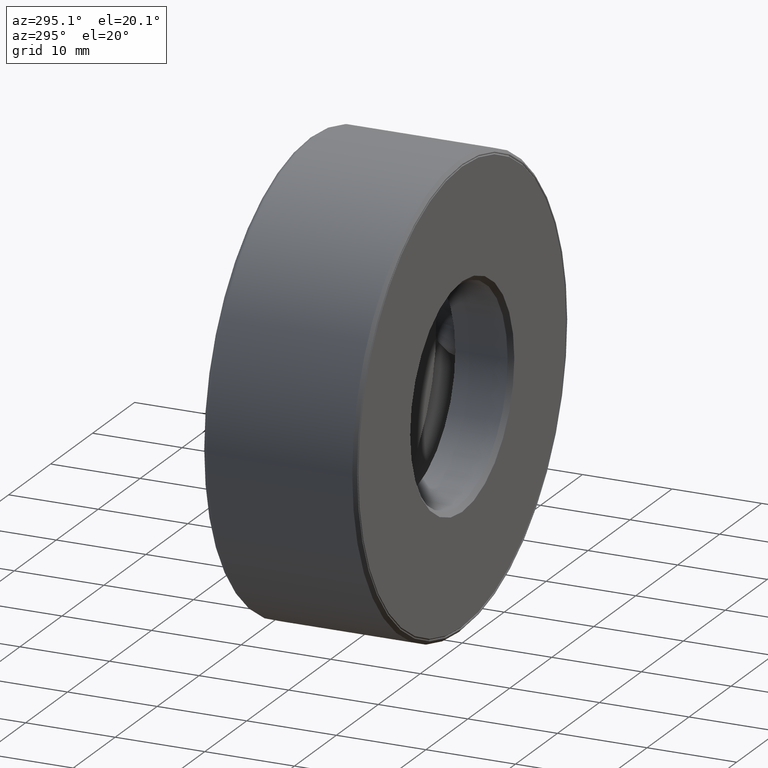
[diagram: clean part render]
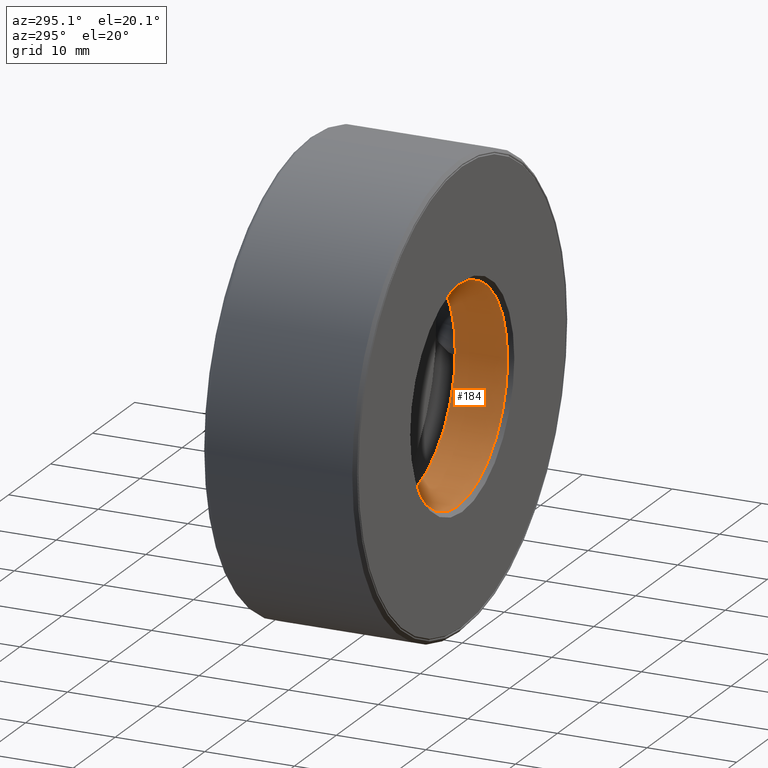
[diagram: same view with one face highlighted and labeled with its STEP entity id]
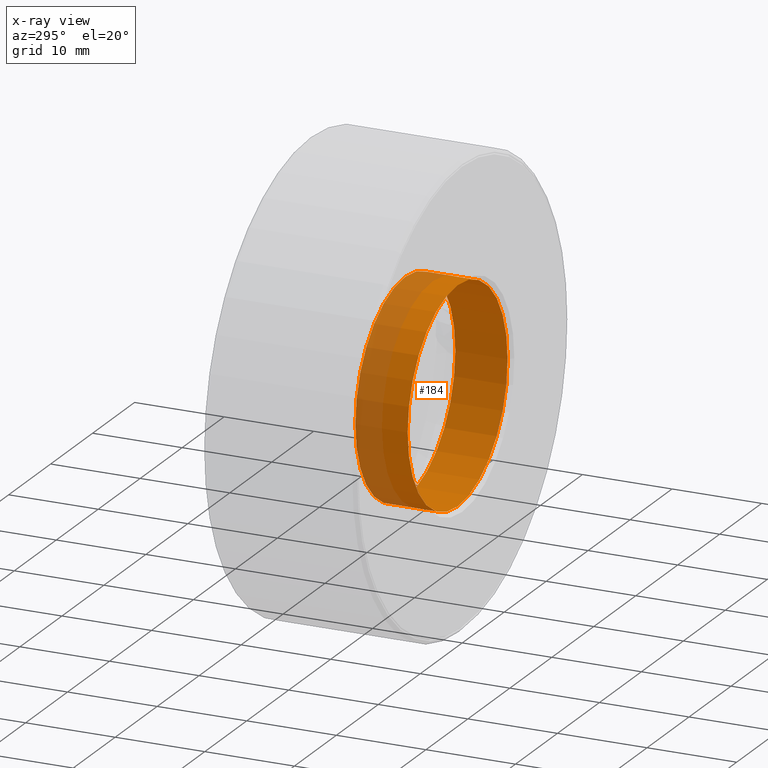
[diagram: x-ray of the same camera — body ghosted, the highlighted face saturated]
A machine part, auxiliary view. The second image highlights one B-rep face of the part: STEP entity #184.
The next image is the same camera in x-ray: the body ghosted, the highlighted face saturated — about 26% of this face is hidden behind the body in this view.
In plain terms, the highlighted cylindrical surface (bore or boss wall) has radius 11.9062 mm, axis along (-0, 1, -0).
Its self-contained STEP definition (entity closure, byte-faithful):
#4 = EDGE_CURVE ( 'NONE', #430, #430, #428, .T. ) ;
#15 = EDGE_LOOP ( 'NONE', ( #163 ) ) ;
#44 = CYLINDRICAL_SURFACE ( 'NONE', #555, 0.4687500000000000000 ) ;
#58 = ORIENTED_EDGE ( 'NONE', *, *, #308, .T. ) ;
#65 = CARTESIAN_POINT ( 'NONE',  ( 0.0000000000000000000, 0.2500000000000001100, 0.4687500000000001100 ) ) ;
#113 = FACE_OUTER_BOUND ( 'NONE', #15, .T. ) ;
#121 = AXIS2_PLACEMENT_3D ( 'NONE', #182, #227, #271 ) ;
#135 = CIRCLE ( 'NONE', #121, 0.4687500000000001100 ) ;
#163 = ORIENTED_EDGE ( 'NONE', *, *, #4, .F. ) ;
#169 = CARTESIAN_POINT ( 'NONE',  ( 0.0000000000000000000, 0.02000000000000005900, 0.0000000000000000000 ) ) ;
#182 = CARTESIAN_POINT ( 'NONE',  ( 0.0000000000000000000, 0.2500000000000001100, 0.0000000000000000000 ) ) ;
#184 = ADVANCED_FACE ( 'NONE', ( #113, #257 ), #44, .F. ) ;
#227 = DIRECTION ( 'NONE',  ( -0.0000000000000000000, 1.000000000000000000, -0.0000000000000000000 ) ) ;
#257 = FACE_OUTER_BOUND ( 'NONE', #524, .T. ) ;
#271 = DIRECTION ( 'NONE',  ( 0.0000000000000000000, 0.0000000000000000000, 1.000000000000000000 ) ) ;
#303 = DIRECTION ( 'NONE',  ( -0.0000000000000000000, 1.000000000000000000, -0.0000000000000000000 ) ) ;
#308 = EDGE_CURVE ( 'NONE', #476, #476, #135, .T. ) ;
#353 = DIRECTION ( 'NONE',  ( 0.0000000000000000000, 0.0000000000000000000, 1.000000000000000000 ) ) ;
#361 = DIRECTION ( 'NONE',  ( -0.0000000000000000000, 1.000000000000000000, -0.0000000000000000000 ) ) ;
#381 = AXIS2_PLACEMENT_3D ( 'NONE', #169, #303, #353 ) ;
#383 = CARTESIAN_POINT ( 'NONE',  ( 0.0000000000000000000, 0.02000000000000005900, 0.4687500000000000000 ) ) ;
#428 = CIRCLE ( 'NONE', #381, 0.4687500000000000000 ) ;
#430 = VERTEX_POINT ( 'NONE', #383 ) ;
#455 = CARTESIAN_POINT ( 'NONE',  ( 0.0000000000000000000, 0.0000000000000000000, 0.0000000000000000000 ) ) ;
#476 = VERTEX_POINT ( 'NONE', #65 ) ;
#524 = EDGE_LOOP ( 'NONE', ( #58 ) ) ;
#555 = AXIS2_PLACEMENT_3D ( 'NONE', #455, #361, #597 ) ;
#597 = DIRECTION ( 'NONE',  ( 0.0000000000000000000, 0.0000000000000000000, 1.000000000000000000 ) ) ;